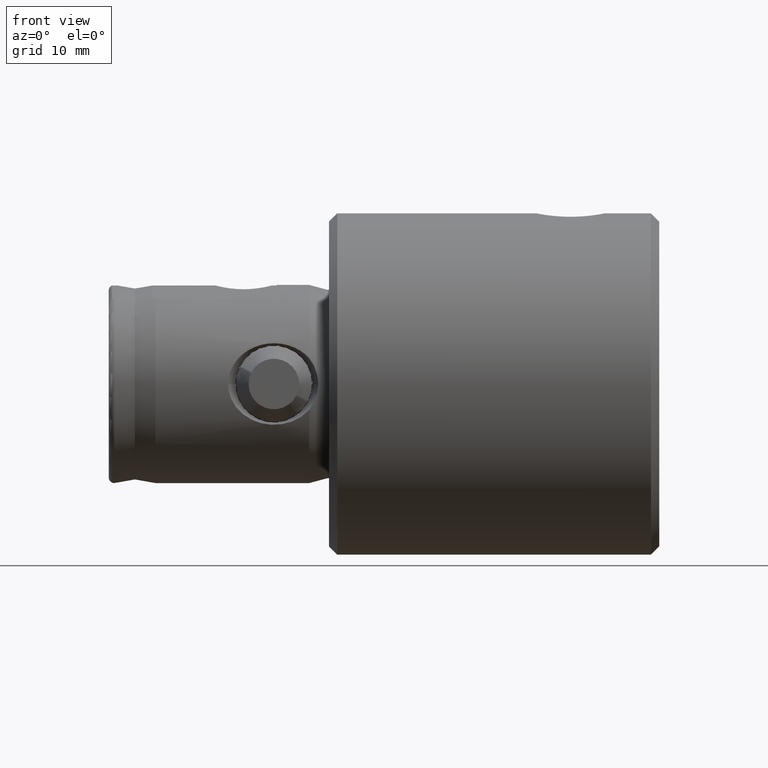
[diagram: clean part render]
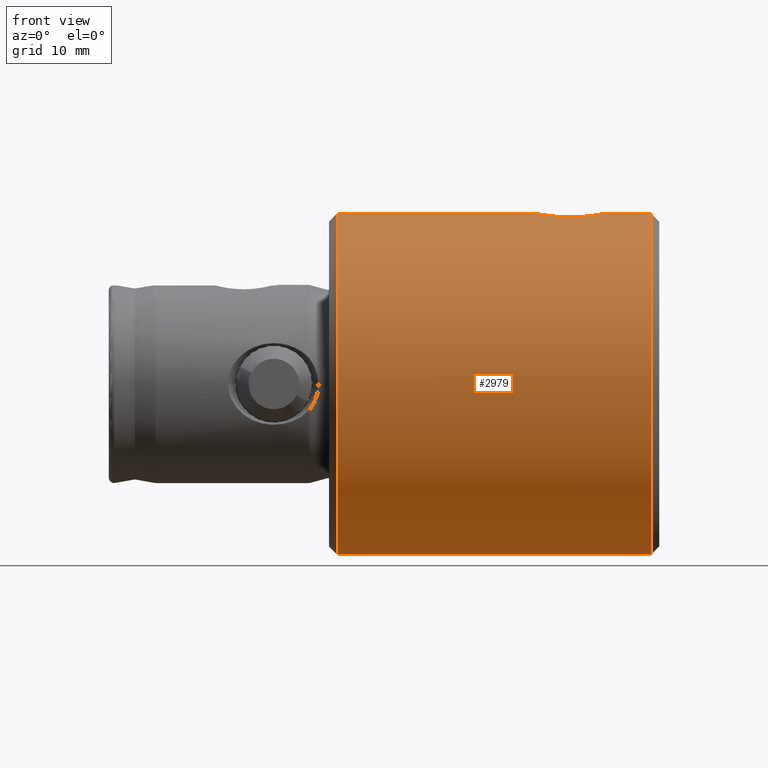
[diagram: same view with one face highlighted and labeled with its STEP entity id]
A machine part, front view. The second image highlights one B-rep face of the part: STEP entity #2979.
In plain terms, the highlighted cylindrical surface (partial cylindrical patch) has radius 15.5 mm, axis along (1, 0, 0).
Its self-contained STEP definition (entity closure, byte-faithful):
#33 = CARTESIAN_POINT ( 'NONE',  ( 15.50000000000000400, -0.2053818538148567700, 4.949999999999999300 ) ) ;
#50 = CARTESIAN_POINT ( 'NONE',  ( 15.21850932254402800, -2.941642505184713900, 9.049074587842085300 ) ) ;
#65 = CARTESIAN_POINT ( 'NONE',  ( 15.20688970166354200, -3.000360054732802900, 7.244072727024846600 ) ) ;
#162 = CARTESIAN_POINT ( 'NONE',  ( 15.50000000000000000, 1.898202538678397600E-015, 29.24999999999999300 ) ) ;
#310 = DIRECTION ( 'NONE',  ( 1.000000000000000000, 0.0000000000000000000, 0.0000000000000000000 ) ) ;
#339 = CARTESIAN_POINT ( 'NONE',  ( 15.48039901464823500, -0.8041754500267336300, 5.049290596243989300 ) ) ;
#369 = CARTESIAN_POINT ( 'NONE',  ( 15.26524462502547800, -2.689890299786881200, 6.495646638039065800 ) ) ;
#381 = DIRECTION ( 'NONE',  ( 0.0000000000000000000, 0.0000000000000000000, -1.000000000000000000 ) ) ;
#384 = CARTESIAN_POINT ( 'NONE',  ( 15.36482450166476900, -2.047767315780287600, 10.38627070781282300 ) ) ;
#442 = AXIS2_PLACEMENT_3D ( 'NONE', #1000, #2957, #310 ) ;
#499 = CARTESIAN_POINT ( 'NONE',  ( 0.0000000000000000000, 0.0000000000000000000, 30.00000000000000000 ) ) ;
#522 = ORIENTED_EDGE ( 'NONE', *, *, #1989, .T. ) ;
#626 = EDGE_CURVE ( 'NONE', #3496, #2128, #1032, .T. ) ;
#639 = CARTESIAN_POINT ( 'NONE',  ( -15.50000000000000000, 0.0000000000000000000, 30.00000000000000000 ) ) ;
#659 = VERTEX_POINT ( 'NONE', #2174 ) ;
#776 = CARTESIAN_POINT ( 'NONE',  ( 15.50000000000000000, 1.898202969930968600E-015, 11.15000000000000000 ) ) ;
#845 = LINE ( 'NONE', #639, #2488 ) ;
#873 = AXIS2_PLACEMENT_3D ( 'NONE', #3722, #3768, #1144 ) ;
#943 = ORIENTED_EDGE ( 'NONE', *, *, #3477, .F. ) ;
#1000 = CARTESIAN_POINT ( 'NONE',  ( 0.0000000000000000000, 0.0000000000000000000, 29.24999999999999300 ) ) ;
#1008 = LINE ( 'NONE', #2444, #2649 ) ;
#1018 = CYLINDRICAL_SURFACE ( 'NONE', #2321, 15.50000000000000000 ) ;
#1032 = LINE ( 'NONE', #2160, #1092 ) ;
#1040 = CARTESIAN_POINT ( 'NONE',  ( 15.18685269981575700, -3.099920173278162900, 7.846017207439580000 ) ) ;
#1072 = CARTESIAN_POINT ( 'NONE',  ( 15.36451029226242900, -2.050015528212719500, 5.715881937750201500 ) ) ;
#1089 = CARTESIAN_POINT ( 'NONE',  ( 15.50000000000000000, -2.928304753669248300E-016, 4.949999999999999300 ) ) ;
#1092 = VECTOR ( 'NONE', #2185, 1000.000000000000000 ) ;
#1144 = DIRECTION ( 'NONE',  ( 1.000000000000000000, 0.0000000000000000000, 0.0000000000000000000 ) ) ;
#1217 = VERTEX_POINT ( 'NONE', #3126 ) ;
#1351 = CARTESIAN_POINT ( 'NONE',  ( 15.19100312486223800, -3.079783059461449500, 8.457571464995298900 ) ) ;
#1468 = CARTESIAN_POINT ( 'NONE',  ( 15.50000000000000000, 1.898202538678397600E-015, 0.7500000000000006700 ) ) ;
#1534 = DIRECTION ( 'NONE',  ( 0.0000000000000000000, 0.0000000000000000000, -1.000000000000000000 ) ) ;
#1592 = CIRCLE ( 'NONE', #873, 15.50000000000000000 ) ;
#1693 = CARTESIAN_POINT ( 'NONE',  ( 15.30320652313006800, -2.464710041405917500, 9.940997422980338200 ) ) ;
#1728 = CARTESIAN_POINT ( 'NONE',  ( 15.30344639961795200, -2.463276594452443300, 6.156909242019921200 ) ) ;
#1759 = CARTESIAN_POINT ( 'NONE',  ( 15.44004560499233000, -1.374885029581538900, 10.83582825273644100 ) ) ;
#1869 = B_SPLINE_CURVE_WITH_KNOTS ( 'NONE', 3,
 ( #1089, #33, #2338, #339, #3644, #4012, #3009, #2353, #1072, #2707, #1728, #369, #2070, #3363, #65, #3321, #1040, #3994, #1351, #2055, #50, #3373, #3633, #1693, #2369, #384, #3671, #3690, #1759, #2084, #2323, #2658, #3737, #776 ),
 .UNSPECIFIED., .F., .F.,
 ( 4, 2, 2, 2, 2, 2, 2, 2, 2, 2, 2, 2, 2, 2, 2, 2, 4 ),
 ( 2.844683876745291600E-019, 0.0006072844959285666900, 0.001214568991857133200, 0.001821853487785699700, 0.002429137983714266800, 0.003036422479642833300, 0.003643706975571399300, 0.004250991471499964900, 0.004858275967428531800, 0.005465560463357098700, 0.006072844959285664800, 0.006680129455214230800, 0.007287413951142796900, 0.007894698447071362900, 0.008501982942999929800, 0.009109267438928496700, 0.009716551934857063600 ),
 .UNSPECIFIED. ) ;
#1876 = EDGE_CURVE ( 'NONE', #3496, #1217, #2415, .T. ) ;
#1931 = EDGE_CURVE ( 'NONE', #659, #2128, #1869, .T. ) ;
#1989 = EDGE_CURVE ( 'NONE', #3638, #3539, #1592, .T. ) ;
#2055 = CARTESIAN_POINT ( 'NONE',  ( 15.20688699100211100, -3.000371256329905600, 8.855574649932233200 ) ) ;
#2070 = CARTESIAN_POINT ( 'NONE',  ( 15.24779616188700600, -2.785840882563714000, 6.675289763533529100 ) ) ;
#2084 = CARTESIAN_POINT ( 'NONE',  ( 15.46884131883961700, -1.000132681883065800, 10.99123826252504600 ) ) ;
#2128 = VERTEX_POINT ( 'NONE', #3518 ) ;
#2160 = CARTESIAN_POINT ( 'NONE',  ( 15.50000000000000000, 1.898202538678397600E-015, 30.00000000000000000 ) ) ;
#2174 = CARTESIAN_POINT ( 'NONE',  ( 15.50000000000000000, -2.928304753669248300E-016, 4.949999999999999300 ) ) ;
#2185 = DIRECTION ( 'NONE',  ( 0.0000000000000000000, 0.0000000000000000000, -1.000000000000000000 ) ) ;
#2232 = CARTESIAN_POINT ( 'NONE',  ( -15.50000000000000000, 0.0000000000000000000, 0.7500000000000006700 ) ) ;
#2321 = AXIS2_PLACEMENT_3D ( 'NONE', #499, #1534, #4121 ) ;
#2323 = CARTESIAN_POINT ( 'NONE',  ( 15.48026937863648700, -0.8068562583238494400, 11.05004415288813700 ) ) ;
#2338 = CARTESIAN_POINT ( 'NONE',  ( 15.49592256390079800, -0.4072292974947200300, 4.970207899958606600 ) ) ;
#2353 = CARTESIAN_POINT ( 'NONE',  ( 15.38514166859479300, -1.891057124206875700, 5.585271407414109200 ) ) ;
#2369 = CARTESIAN_POINT ( 'NONE',  ( 15.32366197786587100, -2.335929479809633900, 10.09815655288322700 ) ) ;
#2415 = CIRCLE ( 'NONE', #442, 15.50000000000000000 ) ;
#2444 = CARTESIAN_POINT ( 'NONE',  ( 15.50000000000000000, 1.898202538678397600E-015, 30.00000000000000000 ) ) ;
#2488 = VECTOR ( 'NONE', #381, 1000.000000000000000 ) ;
#2649 = VECTOR ( 'NONE', #3398, 1000.000000000000000 ) ;
#2658 = CARTESIAN_POINT ( 'NONE',  ( 15.49590214734943800, -0.4083793536870454800, 11.12969288149919600 ) ) ;
#2707 = CARTESIAN_POINT ( 'NONE',  ( 15.32376659290905300, -2.335148302141849500, 6.001158082858011300 ) ) ;
#2801 = ORIENTED_EDGE ( 'NONE', *, *, #4219, .T. ) ;
#2957 = DIRECTION ( 'NONE',  ( -0.0000000000000000000, -0.0000000000000000000, -1.000000000000000000 ) ) ;
#2979 = ADVANCED_FACE ( 'NONE', ( #3923 ), #1018, .T. ) ;
#3009 = CARTESIAN_POINT ( 'NONE',  ( 15.42278773266630400, -1.554445162385315000, 5.360263150555264900 ) ) ;
#3126 = CARTESIAN_POINT ( 'NONE',  ( -15.50000000000000000, 0.0000000000000000000, 29.24999999999999300 ) ) ;
#3240 = ORIENTED_EDGE ( 'NONE', *, *, #1931, .T. ) ;
#3321 = CARTESIAN_POINT ( 'NONE',  ( 15.19093136052554400, -3.080139486516544800, 7.644512674719678100 ) ) ;
#3363 = CARTESIAN_POINT ( 'NONE',  ( 15.21871246281508200, -2.940576166600056500, 7.048127021208380000 ) ) ;
#3373 = CARTESIAN_POINT ( 'NONE',  ( 15.24780729987708100, -2.785795967849041200, 9.425045994102472200 ) ) ;
#3398 = DIRECTION ( 'NONE',  ( 0.0000000000000000000, 0.0000000000000000000, -1.000000000000000000 ) ) ;
#3477 = EDGE_CURVE ( 'NONE', #659, #3539, #1008, .T. ) ;
#3496 = VERTEX_POINT ( 'NONE', #162 ) ;
#3518 = CARTESIAN_POINT ( 'NONE',  ( 15.50000000000000000, 1.898202969930968600E-015, 11.15000000000000000 ) ) ;
#3539 = VERTEX_POINT ( 'NONE', #1468 ) ;
#3560 = ORIENTED_EDGE ( 'NONE', *, *, #626, .F. ) ;
#3633 = CARTESIAN_POINT ( 'NONE',  ( 15.26540534077132200, -2.688926413966823900, 9.605744703412794300 ) ) ;
#3638 = VERTEX_POINT ( 'NONE', #2232 ) ;
#3644 = CARTESIAN_POINT ( 'NONE',  ( 15.46876422431313400, -1.001367450392699900, 5.109161934772402900 ) ) ;
#3671 = CARTESIAN_POINT ( 'NONE',  ( 15.38504796527631900, -1.891761699632811300, 10.51413025517791900 ) ) ;
#3690 = CARTESIAN_POINT ( 'NONE',  ( 15.42258001814960400, -1.556434645535490900, 10.73853332448337400 ) ) ;
#3710 = ORIENTED_EDGE ( 'NONE', *, *, #1876, .T. ) ;
#3722 = CARTESIAN_POINT ( 'NONE',  ( 0.0000000000000000000, 0.0000000000000000000, 0.7500000000000006700 ) ) ;
#3737 = CARTESIAN_POINT ( 'NONE',  ( 15.50000000000000400, -0.2026021155991639400, 11.15000000000000200 ) ) ;
#3768 = DIRECTION ( 'NONE',  ( 0.0000000000000000000, 0.0000000000000000000, 1.000000000000000000 ) ) ;
#3923 = FACE_OUTER_BOUND ( 'NONE', #4273, .T. ) ;
#3994 = CARTESIAN_POINT ( 'NONE',  ( 15.18682020818563700, -3.100079349120359800, 8.251549223553839200 ) ) ;
#4012 = CARTESIAN_POINT ( 'NONE',  ( 15.43989786430949900, -1.376574494092845000, 5.264985106177959100 ) ) ;
#4121 = DIRECTION ( 'NONE',  ( -1.000000000000000000, 0.0000000000000000000, 0.0000000000000000000 ) ) ;
#4219 = EDGE_CURVE ( 'NONE', #1217, #3638, #845, .T. ) ;
#4273 = EDGE_LOOP ( 'NONE', ( #3560, #3710, #2801, #522, #943, #3240 ) ) ;